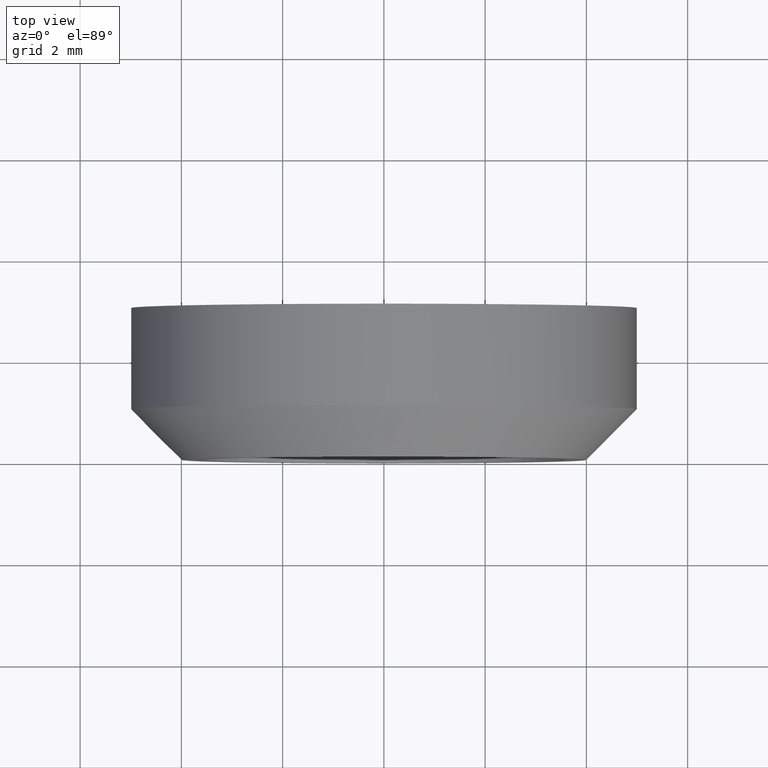
[diagram: clean part render]
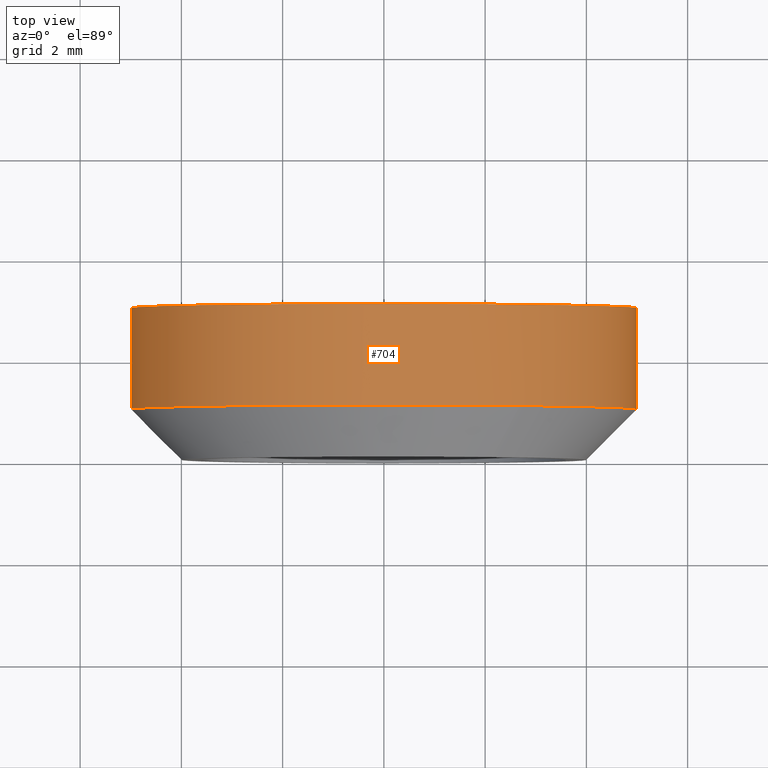
[diagram: same view with one face highlighted and labeled with its STEP entity id]
A machine part, top view. The second image highlights one B-rep face of the part: STEP entity #704.
In plain terms, the highlighted face is a freeform B-spline surface patch.
Its self-contained STEP definition (entity closure, byte-faithful):
#438=CARTESIAN_POINT('',(4.965048002999415,-1.000000000000000,-0.590168050559857));
#439=VERTEX_POINT('',#438);
#440=CARTESIAN_POINT('',(2.689253967231708,-0.999999999999958,4.215200244321606));
#441=VERTEX_POINT('',#440);
#442=CARTESIAN_POINT('',(4.965048002999415,-1.000000000000000,-0.590168050559856));
#443=CARTESIAN_POINT('',(5.000000000000001,-1.0,-0.296119020391211));
#444=CARTESIAN_POINT('',(5.000000000000001,-1.0,0.0));
#445=CARTESIAN_POINT('',(5.000000000000002,-1.0,2.740968280072530));
#446=CARTESIAN_POINT('',(2.689253967231708,-0.999999999999958,4.215200244321607));
#454=(BOUNDED_CURVE()B_SPLINE_CURVE(2,(#442,#443,#444,#445,#446),.UNSPECIFIED.,.F.,.U.)B_SPLINE_CURVE_WITH_KNOTS((3,2,3),(0.229562579808786,0.250000000000000,0.407950112627522),.UNSPECIFIED.)CURVE()GEOMETRIC_REPRESENTATION_ITEM()RATIONAL_B_SPLINE_CURVE((0.956026962526900,0.976056072863809,1.0,0.814949932402312,0.863729296954906))REPRESENTATION_ITEM(''));
#455=EDGE_CURVE('',#439,#441,#454,.T.);
#498=CARTESIAN_POINT('',(-4.984586668665754,-0.999999999999709,0.392295478641466));
#499=VERTEX_POINT('',#498);
#505=CARTESIAN_POINT('',(-4.990674099992544,-1.000000000000000,0.305240933789139));
#506=VERTEX_POINT('',#505);
#507=CARTESIAN_POINT('',(-4.984586668665754,-0.999999999999709,0.392295478641466));
#508=CARTESIAN_POINT('',(-4.988010248773502,-1.0,0.348794768858520));
#509=CARTESIAN_POINT('',(-4.990674099992544,-1.000000000000000,0.305240933789139));
#517=(BOUNDED_CURVE()B_SPLINE_CURVE(2,(#507,#508,#509),.UNSPECIFIED.,.F.,.U.)B_SPLINE_CURVE_WITH_KNOTS((3,3),(0.736331300632614,0.739333023226263),.UNSPECIFIED.)CURVE()GEOMETRIC_REPRESENTATION_ITEM()RATIONAL_B_SPLINE_CURVE((0.969723356171497,0.972855539199972,0.976072172374189))REPRESENTATION_ITEM(''));
#518=EDGE_CURVE('',#499,#506,#517,.T.);
#571=CARTESIAN_POINT('',(4.898425E-016,-1.0,5.0));
#572=VERTEX_POINT('',#571);
#573=CARTESIAN_POINT('',(2.689253967231708,-0.999999999999958,4.215200244321607));
#574=CARTESIAN_POINT('',(1.459140276897186,-1.0,5.0));
#575=CARTESIAN_POINT('',(4.898425E-016,-1.0,5.0));
#583=(BOUNDED_CURVE()B_SPLINE_CURVE(2,(#573,#574,#575),.UNSPECIFIED.,.F.,.U.)B_SPLINE_CURVE_WITH_KNOTS((3,3),(0.407950112627522,0.500000000000000),.UNSPECIFIED.)CURVE()GEOMETRIC_REPRESENTATION_ITEM()RATIONAL_B_SPLINE_CURVE((0.863729296954906,0.892156848784236,1.0))REPRESENTATION_ITEM(''));
#584=EDGE_CURVE('',#441,#572,#583,.T.);
#586=CARTESIAN_POINT('',(4.898425E-016,-1.0,5.0));
#587=CARTESIAN_POINT('',(-4.621952458286930,-1.0,5.0));
#588=CARTESIAN_POINT('',(-4.984586668665755,-0.999999999999709,0.392295478641466));
#596=(BOUNDED_CURVE()B_SPLINE_CURVE(2,(#586,#587,#588),.UNSPECIFIED.,.F.,.U.)B_SPLINE_CURVE_WITH_KNOTS((3,3),(0.500000000000000,0.736331300632615),.UNSPECIFIED.)CURVE()GEOMETRIC_REPRESENTATION_ITEM()RATIONAL_B_SPLINE_CURVE((1.0,0.723120658605375,0.969723356171499))REPRESENTATION_ITEM(''));
#597=EDGE_CURVE('',#572,#499,#596,.T.);
#632=CARTESIAN_POINT('',(4.965047631818333,1.050000000000000,-0.590171173283792));
#633=CARTESIAN_POINT('',(4.981938077243029,1.050000000000000,-0.448073643189888));
#634=CARTESIAN_POINT('',(4.990673992109334,1.050000000000000,-0.305242697674285));
#635=CARTESIAN_POINT('',(5.295916689783620,1.050000000000000,4.685431294435048));
#636=CARTESIAN_POINT('',(0.305242697674285,1.050000000000000,4.990673992109334));
#637=CARTESIAN_POINT('',(-4.685431294435047,1.050000000000000,5.295916689783620));
#638=CARTESIAN_POINT('',(-4.990673992109333,1.050000000000000,0.305242697674285));
#639=CARTESIAN_POINT('',(4.965047631818333,-1.051250000000000,-0.590171173283792));
#640=CARTESIAN_POINT('',(4.981938077243029,-1.051250000000000,-0.448073643189888));
#641=CARTESIAN_POINT('',(4.990673992109334,-1.051250000000000,-0.305242697674285));
#642=CARTESIAN_POINT('',(5.295916689783620,-1.051250000000000,4.685431294435048));
#643=CARTESIAN_POINT('',(0.305242697674285,-1.051250000000000,4.990673992109334));
#644=CARTESIAN_POINT('',(-4.685431294435047,-1.051250000000000,5.295916689783620));
#645=CARTESIAN_POINT('',(-4.990673992109333,-1.051250000000000,0.305242697674285));
#653=(BOUNDED_SURFACE()B_SPLINE_SURFACE(2,1,((#632,#639),(#633,#640),(#634,#641),(#635,#642),(#636,#643),(#637,#644),(#638,#645)),.UNSPECIFIED.,.F.,.F.,.U.)B_SPLINE_SURFACE_WITH_KNOTS((3,2,2,3),(2,2),(0.0,0.331370849898476,8.615642097360375,16.899913344822270),(0.0,2.101250000000000),.UNSPECIFIED.)GEOMETRIC_REPRESENTATION_ITEM()RATIONAL_B_SPLINE_SURFACE(((0.977505800795127,0.977505800795127),(0.988284271247462,0.988284271247462),(1.0,1.0),(0.707106781186548,0.707106781186548),(1.0,1.0),(0.707106781186548,0.707106781186548),(1.0,1.0)))REPRESENTATION_ITEM('')SURFACE());
#654=CARTESIAN_POINT('',(4.965048007524626,0.999999999999988,-0.590168012489337));
#655=VERTEX_POINT('',#654);
#656=CARTESIAN_POINT('',(4.898425E-016,1.0,5.0));
#657=VERTEX_POINT('',#656);
#658=CARTESIAN_POINT('',(4.965048007524626,0.999999999999988,-0.590168012489337));
#659=CARTESIAN_POINT('',(5.0,1.0,-0.296119001154716));
#660=CARTESIAN_POINT('',(5.000000000000001,1.0,0.0));
#661=CARTESIAN_POINT('',(5.000000000000002,1.0,5.000000000000001));
#662=CARTESIAN_POINT('',(4.898425E-016,1.0,5.0));
#670=(BOUNDED_CURVE()B_SPLINE_CURVE(2,(#658,#659,#660,#661,#662),.UNSPECIFIED.,.F.,.U.)B_SPLINE_CURVE_WITH_KNOTS((3,2,3),(0.229562581104653,0.250000000000000,0.500000000000000),.UNSPECIFIED.)CURVE()GEOMETRIC_REPRESENTATION_ITEM()RATIONAL_B_SPLINE_CURVE((0.956026965066855,0.976056074382012,1.0,0.707106781186548,1.0))REPRESENTATION_ITEM(''));
#671=EDGE_CURVE('',#655,#657,#670,.T.);
#672=ORIENTED_EDGE('',*,*,#671,.T.);
#673=CARTESIAN_POINT('',(-4.990674101307194,0.999999999999992,0.305240912294563));
#674=VERTEX_POINT('',#673);
#675=CARTESIAN_POINT('',(4.898425E-016,1.0,5.0));
#676=CARTESIAN_POINT('',(-4.703532020329108,1.0,5.0));
#677=CARTESIAN_POINT('',(-4.990674101307194,0.999999999999992,0.305240912294563));
#685=(BOUNDED_CURVE()B_SPLINE_CURVE(2,(#675,#676,#677),.UNSPECIFIED.,.F.,.U.)B_SPLINE_CURVE_WITH_KNOTS((3,3),(0.500000000000000,0.739333023969413),.UNSPECIFIED.)CURVE()GEOMETRIC_REPRESENTATION_ITEM()RATIONAL_B_SPLINE_CURVE((1.0,0.719603920964966,0.976072173966902))REPRESENTATION_ITEM(''));
#686=EDGE_CURVE('',#657,#674,#685,.T.);
#687=ORIENTED_EDGE('',*,*,#686,.T.);
#688=CARTESIAN_POINT('',(-4.990674101307194,0.999999999999992,0.305240912294563));
#689=CARTESIAN_POINT('',(-4.990674099992544,-1.000000000000000,0.305240933789139));
#690=QUASI_UNIFORM_CURVE('',1,(#688,#689),.UNSPECIFIED.,.F.,.U.);
#691=EDGE_CURVE('',#674,#506,#690,.T.);
#692=ORIENTED_EDGE('',*,*,#691,.T.);
#693=ORIENTED_EDGE('',*,*,#518,.F.);
#694=ORIENTED_EDGE('',*,*,#597,.F.);
#695=ORIENTED_EDGE('',*,*,#584,.F.);
#696=ORIENTED_EDGE('',*,*,#455,.F.);
#697=CARTESIAN_POINT('',(4.965048007524626,0.999999999999988,-0.590168012489337));
#698=CARTESIAN_POINT('',(4.965048002999415,-1.000000000000000,-0.590168050559857));
#699=QUASI_UNIFORM_CURVE('',1,(#697,#698),.UNSPECIFIED.,.F.,.U.);
#700=EDGE_CURVE('',#655,#439,#699,.T.);
#701=ORIENTED_EDGE('',*,*,#700,.F.);
#702=EDGE_LOOP('',(#672,#687,#692,#693,#694,#695,#696,#701));
#703=FACE_OUTER_BOUND('',#702,.T.);
#704=ADVANCED_FACE('',(#703),#653,.T.);